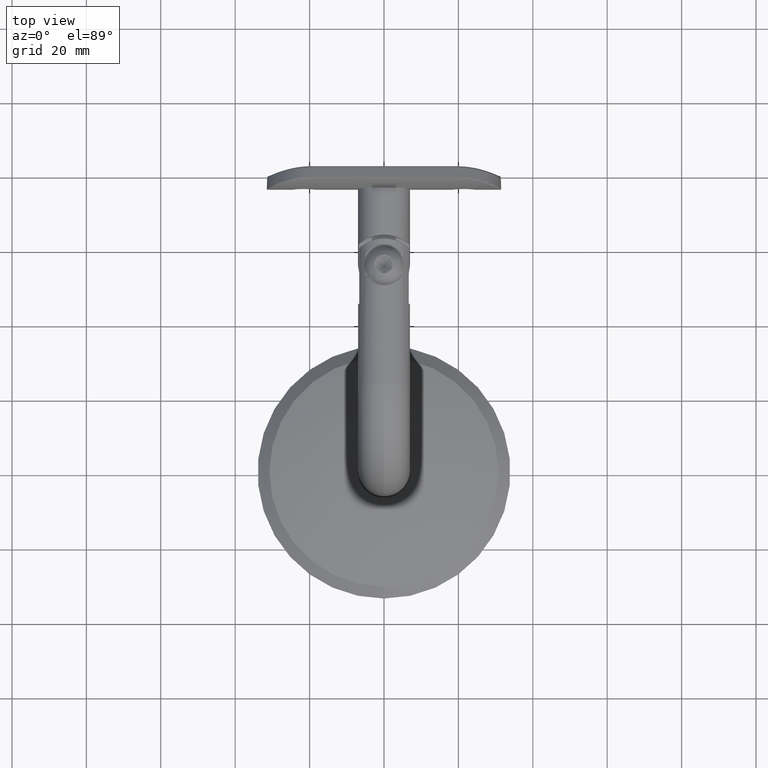
[diagram: clean part render]
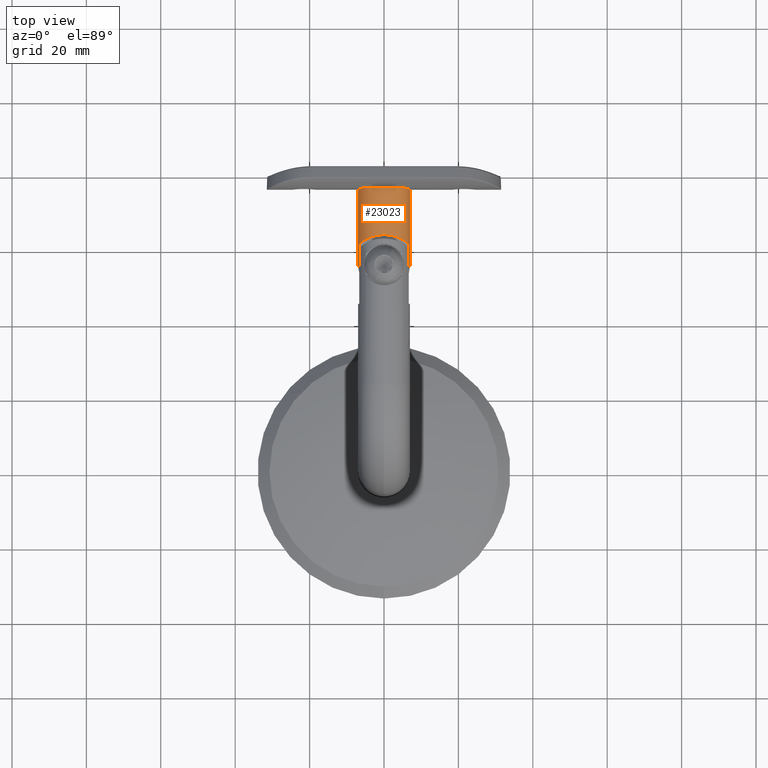
[diagram: same view with one face highlighted and labeled with its STEP entity id]
A machine part, top view. The second image highlights one B-rep face of the part: STEP entity #23023.
In plain terms, the highlighted cylindrical surface (edge-blend (fillet) strip) has radius 7 mm, axis along (-0, -1, 0).
Its self-contained STEP definition (entity closure, byte-faithful):
#74 = CARTESIAN_POINT ( 'NONE',  ( -6.563210585580058876, 14.71388815502471914, -2.441483628679070872 ) ) ;
#376 = CARTESIAN_POINT ( 'NONE',  ( -5.796133557264200320, 14.23713427854290536, -3.942348315711389439 ) ) ;
#845 = FACE_OUTER_BOUND ( 'NONE', #40576, .T. ) ;
#2379 = CARTESIAN_POINT ( 'NONE',  ( 0.000000000000000000, 6.999999999999999112, -6.999999999999998224 ) ) ;
#2393 = LINE ( 'NONE', #20524, #7322 ) ;
#2647 = CARTESIAN_POINT ( 'NONE',  ( -2.000000000000001776, 12.57774721070175694, 6.708203932499369415 ) ) ;
#2770 = CARTESIAN_POINT ( 'NONE',  ( -2.000000000000001776, 12.57774721070175694, -6.708203932499369415 ) ) ;
#3249 = CARTESIAN_POINT ( 'NONE',  ( -2.000000000000000000, 4.999999999999999112, 6.708203932499368527 ) ) ;
#3479 = CARTESIAN_POINT ( 'NONE',  ( -6.965875584859534619, 14.97716898220107851, 0.7910720141455169774 ) ) ;
#3628 = CARTESIAN_POINT ( 'NONE',  ( -5.340699643159997123, 13.97311964617640889, 4.540060636839962527 ) ) ;
#5172 = CARTESIAN_POINT ( 'NONE',  ( 0.000000000000000000, 6.999999999999999112, -6.999999999999998224 ) ) ;
#5894 = CARTESIAN_POINT ( 'NONE',  ( -0.6784631773098523944, 6.321536822690147162, 6.999999999999999112 ) ) ;
#6743 = CARTESIAN_POINT ( 'NONE',  ( -6.491294757377507274, 14.66749589476120263, 2.646943327226385811 ) ) ;
#6895 = CARTESIAN_POINT ( 'NONE',  ( -6.836534901959994137, 14.89162435250483085, 1.552742132354663074 ) ) ;
#7048 = CARTESIAN_POINT ( 'NONE',  ( -3.378598239792882207, 13.01875579096284419, -6.141747773857365367 ) ) ;
#7191 = CARTESIAN_POINT ( 'NONE',  ( -2.000000000000001776, 12.57774721070175694, -6.708203932499369415 ) ) ;
#7322 = VECTOR ( 'NONE', #41661, 1000.000000000000000 ) ;
#7985 = VERTEX_POINT ( 'NONE', #2770 ) ;
#8220 = VECTOR ( 'NONE', #10169, 1000.000000000000000 ) ;
#8610 = CARTESIAN_POINT ( 'NONE',  ( -2.000000000000000000, 4.999999999999999112, -6.708203932499367639 ) ) ;
#10169 = DIRECTION ( 'NONE',  ( -0.000000000000000000, -1.000000000000000000, -0.000000000000000000 ) ) ;
#10465 = CARTESIAN_POINT ( 'NONE',  ( -6.998897834509339333, 14.99926522455842104, 0.4069292137963691491 ) ) ;
#10514 = DIRECTION ( 'NONE',  ( -0.000000000000000000, -1.000000000000000000, -0.000000000000000000 ) ) ;
#10898 = CARTESIAN_POINT ( 'NONE',  ( -5.123306368496068686, 13.84691110070041908, -4.827093295004147855 ) ) ;
#11377 = ORIENTED_EDGE ( 'NONE', *, *, #12537, .T. ) ;
#11812 = EDGE_CURVE ( 'NONE', #26619, #7985, #40579, .T. ) ;
#12069 = CARTESIAN_POINT ( 'NONE',  ( -2.000000000000000000, 27.69999999999999929, 6.708203932499369415 ) ) ;
#12537 = EDGE_CURVE ( 'NONE', #26619, #26223, #19060, .T. ) ;
#13349 = CARTESIAN_POINT ( 'NONE',  ( 0.000000000000000000, 27.69999999999999929, -7.000000000000000888 ) ) ;
#14151 = CARTESIAN_POINT ( 'NONE',  ( -6.340955651380306257, 14.57167843718730893, 2.988258123872794769 ) ) ;
#14441 = CARTESIAN_POINT ( 'NONE',  ( -6.738828323587278568, 14.82728775224216911, 1.931685644695552817 ) ) ;
#14582 = ORIENTED_EDGE ( 'NONE', *, *, #30651, .T. ) ;
#14619 = CARTESIAN_POINT ( 'NONE',  ( 0.000000000000000000, 27.69999999999999929, 0.000000000000000000 ) ) ;
#14827 =( BOUNDED_CURVE ( )  B_SPLINE_CURVE ( 3, ( #5172, #40990, #30310, #30146 ),
 .UNSPECIFIED., .F., .F. ) 
 B_SPLINE_CURVE_WITH_KNOTS ( ( 4, 4 ),
 ( 4.712388980384689674, 5.002140681820737456 ),
 .UNSPECIFIED. ) 
 CURVE ( )  GEOMETRIC_REPRESENTATION_ITEM ( )  RATIONAL_B_SPLINE_CURVE ( ( 1.000000000000000000, 0.9930158912520659076, 0.9930158912520659076, 1.000000000000000000 ) ) 
 REPRESENTATION_ITEM ( '' )  );
#15186 = VERTEX_POINT ( 'NONE', #13349 ) ;
#16078 = LINE ( 'NONE', #31167, #43241 ) ;
#16083 = ORIENTED_EDGE ( 'NONE', *, *, #20423, .T. ) ;
#17162 = ORIENTED_EDGE ( 'NONE', *, *, #44668, .F. ) ;
#17576 = CARTESIAN_POINT ( 'NONE',  ( -7.001048272548959339, 15.00069884685219712, -0.3680833715066531564 ) ) ;
#18004 = CARTESIAN_POINT ( 'NONE',  ( -6.748486738297992282, 14.83359499243706736, -1.898480640440700640 ) ) ;
#18028 = DIRECTION ( 'NONE',  ( 0.000000000000000000, 0.000000000000000000, 1.000000000000000000 ) ) ;
#19060 = LINE ( 'NONE', #12069, #26847 ) ;
#20423 = EDGE_CURVE ( 'NONE', #26223, #36893, #40628, .T. ) ;
#20524 = CARTESIAN_POINT ( 'NONE',  ( 0.000000000000000000, 27.69999999999999929, -7.000000000000000888 ) ) ;
#21104 = ORIENTED_EDGE ( 'NONE', *, *, #11812, .F. ) ;
#21110 = CARTESIAN_POINT ( 'NONE',  ( -6.842415717056735680, 14.89549897879321350, -1.526822293499675798 ) ) ;
#21255 = CARTESIAN_POINT ( 'NONE',  ( -6.969043535917540666, 14.97928022235209866, -0.7630670713892510060 ) ) ;
#21413 = CARTESIAN_POINT ( 'NONE',  ( -2.000000000000001776, 12.57774721070175694, 6.708203932499369415 ) ) ;
#22565 = EDGE_CURVE ( 'NONE', #23387, #44043, #14827, .T. ) ;
#23023 = ADVANCED_FACE ( 'NONE', ( #845 ), #39655, .T. ) ;
#23387 = VERTEX_POINT ( 'NONE', #2379 ) ;
#23976 = DIRECTION ( 'NONE',  ( 0.000000000000000000, 1.000000000000000000, 0.000000000000000000 ) ) ;
#24524 = CARTESIAN_POINT ( 'NONE',  ( -5.786992045166831744, 14.23171105629160671, 3.955495712778467343 ) ) ;
#24682 = CARTESIAN_POINT ( 'NONE',  ( -5.989893732107819169, 14.35443123124193754, 3.641233069403697620 ) ) ;
#24825 = CARTESIAN_POINT ( 'NONE',  ( -4.600603523304217291, 13.56237827958038089, -5.326804861503371846 ) ) ;
#24831 = LINE ( 'NONE', #42271, #8220 ) ;
#25295 = DIRECTION ( 'NONE',  ( 0.000000000000000000, 1.000000000000000000, 0.000000000000000000 ) ) ;
#26223 = VERTEX_POINT ( 'NONE', #3249 ) ;
#26311 = DIRECTION ( 'NONE',  ( -0.000000000000000000, -1.000000000000000000, -0.000000000000000000 ) ) ;
#26619 = VERTEX_POINT ( 'NONE', #2647 ) ;
#26658 = CARTESIAN_POINT ( 'NONE',  ( -1.349818663702004207, 5.650181336297994683, 6.902050554587897402 ) ) ;
#26847 = VECTOR ( 'NONE', #26311, 1000.000000000000000 ) ;
#27987 = CARTESIAN_POINT ( 'NONE',  ( -5.996326991454274946, 14.35833786712822047, -3.630895157663142747 ) ) ;
#28144 = CARTESIAN_POINT ( 'NONE',  ( -3.690207271789669896, 13.14846106541008730, 5.959556859248443139 ) ) ;
#28580 = CARTESIAN_POINT ( 'NONE',  ( -6.342393173799406370, 14.57335739416634901, -2.968158163910613823 ) ) ;
#30146 = CARTESIAN_POINT ( 'NONE',  ( -2.000000000000000000, 4.999999999999999112, -6.708203932499367639 ) ) ;
#30310 = CARTESIAN_POINT ( 'NONE',  ( -1.349818663702004207, 5.650181336297994683, -6.902050554587897402 ) ) ;
#30651 = EDGE_CURVE ( 'NONE', #15186, #23387, #2393, .T. ) ;
#31167 = CARTESIAN_POINT ( 'NONE',  ( -2.000000000000000000, 27.69999999999999929, -6.708203932499369415 ) ) ;
#31711 = CARTESIAN_POINT ( 'NONE',  ( -4.574524191117704142, 13.56237573919436912, 5.310830353872761478 ) ) ;
#32156 = CARTESIAN_POINT ( 'NONE',  ( -6.260428293652173792, 14.52188527416191555, -3.137175774265053008 ) ) ;
#33107 = ORIENTED_EDGE ( 'NONE', *, *, #22565, .T. ) ;
#34678 = CARTESIAN_POINT ( 'NONE',  ( 8.572527594031474176E-16, 27.69999999999999929, 7.000000000000000888 ) ) ;
#35201 = ORIENTED_EDGE ( 'NONE', *, *, #38250, .T. ) ;
#35250 = ORIENTED_EDGE ( 'NONE', *, *, #40063, .F. ) ;
#35283 = CARTESIAN_POINT ( 'NONE',  ( -3.695369663660665882, 13.15063834505849272, -5.956453957825102563 ) ) ;
#35421 = CARTESIAN_POINT ( 'NONE',  ( -4.291568075589168529, 13.42164814586188903, 5.542237014055643840 ) ) ;
#35700 = CARTESIAN_POINT ( 'NONE',  ( -2.714574385463746520, 12.77787341376680352, -6.462745367829186627 ) ) ;
#36455 = CIRCLE ( 'NONE', #40879, 7.000000000000000888 ) ;
#36893 = VERTEX_POINT ( 'NONE', #39640 ) ;
#37381 = CARTESIAN_POINT ( 'NONE',  ( -2.000000000000000000, 4.999999999999999112, 6.708203932499368527 ) ) ;
#37694 = CARTESIAN_POINT ( 'NONE',  ( -1.734723475976807094E-15, 7.000000000000000888, 7.000000000000000888 ) ) ;
#38250 = EDGE_CURVE ( 'NONE', #44043, #7985, #16078, .T. ) ;
#38976 = CARTESIAN_POINT ( 'NONE',  ( -3.375247361192844853, 13.01746306110890927, 6.143513645013049640 ) ) ;
#39273 = CARTESIAN_POINT ( 'NONE',  ( -2.366925258247766006, 12.66859562392311922, -6.598807956485550186 ) ) ;
#39640 = CARTESIAN_POINT ( 'NONE',  ( -1.734723475976807094E-15, 7.000000000000000888, 7.000000000000000888 ) ) ;
#39655 = CYLINDRICAL_SURFACE ( 'NONE', #40185, 7.000000000000000888 ) ;
#40063 = EDGE_CURVE ( 'NONE', #41838, #36893, #24831, .T. ) ;
#40185 = AXIS2_PLACEMENT_3D ( 'NONE', #42306, #10514, #46020 ) ;
#40576 = EDGE_LOOP ( 'NONE', ( #35250, #17162, #14582, #33107, #35201, #21104, #11377, #16083 ) ) ;
#40579 = B_SPLINE_CURVE_WITH_KNOTS ( 'NONE', 3,
 ( #21413, #42568, #42409, #38976, #28144, #35421, #31711, #45834, #3628, #24524, #24682, #14151, #6743, #14441, #6895, #3479, #10465, #17576, #21255, #21110, #18004, #74, #45976, #28580, #32156, #27987, #376, #10898, #24825, #35283, #7048, #35700, #39273, #7191 ),
 .UNSPECIFIED., .F., .F.,
 ( 4, 2, 2, 2, 2, 2, 2, 2, 2, 2, 2, 2, 2, 2, 2, 2, 4 ),
 ( 0.000000000000000000, 0.001159692097011934655, 0.002319384194023869309, 0.003479076291035803747, 0.004638768388047738618, 0.005798460485059673056, 0.006958152582071607493, 0.008117844679083541931, 0.009277536776095477236, 0.01043722887310741081, 0.01159692097011934611, 0.01217676701862531290, 0.01275661306713128142, 0.01391630516414321499, 0.01623568935816707692, 0.01739538145517900702, 0.01855507355219093713 ),
 .UNSPECIFIED. ) ;
#40628 =( BOUNDED_CURVE ( )  B_SPLINE_CURVE ( 3, ( #37381, #26658, #5894, #37694 ),
 .UNSPECIFIED., .F., .F. ) 
 B_SPLINE_CURVE_WITH_KNOTS ( ( 4, 4 ),
 ( 1.281044625358848998, 1.570796326794896780 ),
 .UNSPECIFIED. ) 
 CURVE ( )  GEOMETRIC_REPRESENTATION_ITEM ( )  RATIONAL_B_SPLINE_CURVE ( ( 1.000000000000000000, 0.9930158912520659076, 0.9930158912520659076, 1.000000000000000000 ) ) 
 REPRESENTATION_ITEM ( '' )  );
#40879 = AXIS2_PLACEMENT_3D ( 'NONE', #14619, #25295, #18028 ) ;
#40990 = CARTESIAN_POINT ( 'NONE',  ( -0.6784631773098521723, 6.321536822690147162, -6.999999999999999112 ) ) ;
#41661 = DIRECTION ( 'NONE',  ( -0.000000000000000000, -1.000000000000000000, -0.000000000000000000 ) ) ;
#41838 = VERTEX_POINT ( 'NONE', #34678 ) ;
#42271 = CARTESIAN_POINT ( 'NONE',  ( 8.572527594031474176E-16, 27.69999999999999929, 7.000000000000000888 ) ) ;
#42306 = CARTESIAN_POINT ( 'NONE',  ( 0.000000000000000000, 27.69999999999999929, 0.000000000000000000 ) ) ;
#42409 = CARTESIAN_POINT ( 'NONE',  ( -2.713400598068924197, 12.77752529767903411, 6.463165776157996589 ) ) ;
#42568 = CARTESIAN_POINT ( 'NONE',  ( -2.366568476869574944, 12.66850728707154872, 6.598914328140847552 ) ) ;
#43241 = VECTOR ( 'NONE', #23976, 1000.000000000000000 ) ;
#44043 = VERTEX_POINT ( 'NONE', #8610 ) ;
#44668 = EDGE_CURVE ( 'NONE', #15186, #41838, #36455, .T. ) ;
#45834 = CARTESIAN_POINT ( 'NONE',  ( -5.098225568087496384, 13.83768099724544065, 4.810331244273751139 ) ) ;
#45976 = CARTESIAN_POINT ( 'NONE',  ( -6.493698171597642066, 14.66930154746918546, -2.620648414655420311 ) ) ;
#46020 = DIRECTION ( 'NONE',  ( 0.000000000000000000, 0.000000000000000000, -1.000000000000000000 ) ) ;